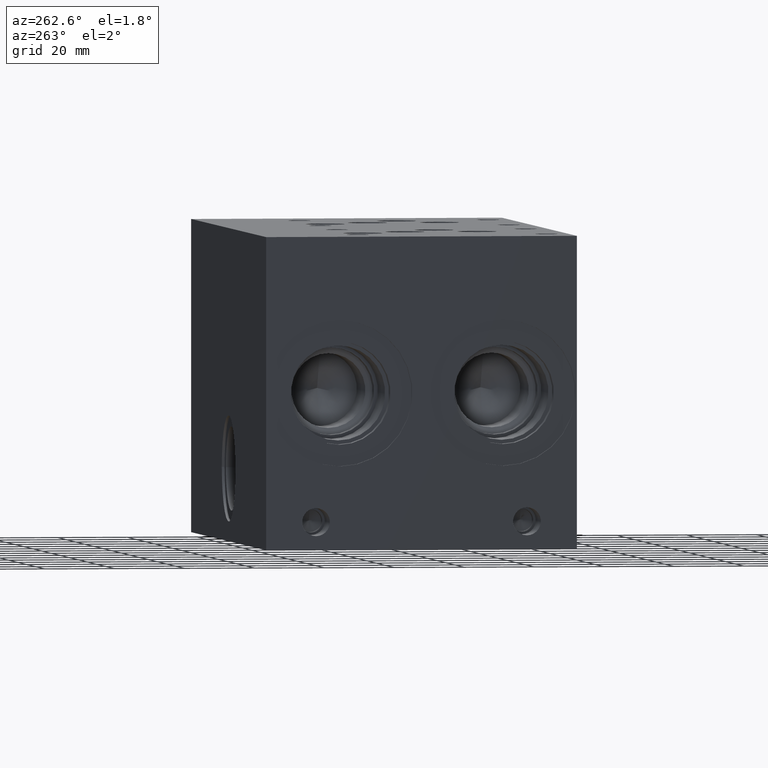
[diagram: clean part render]
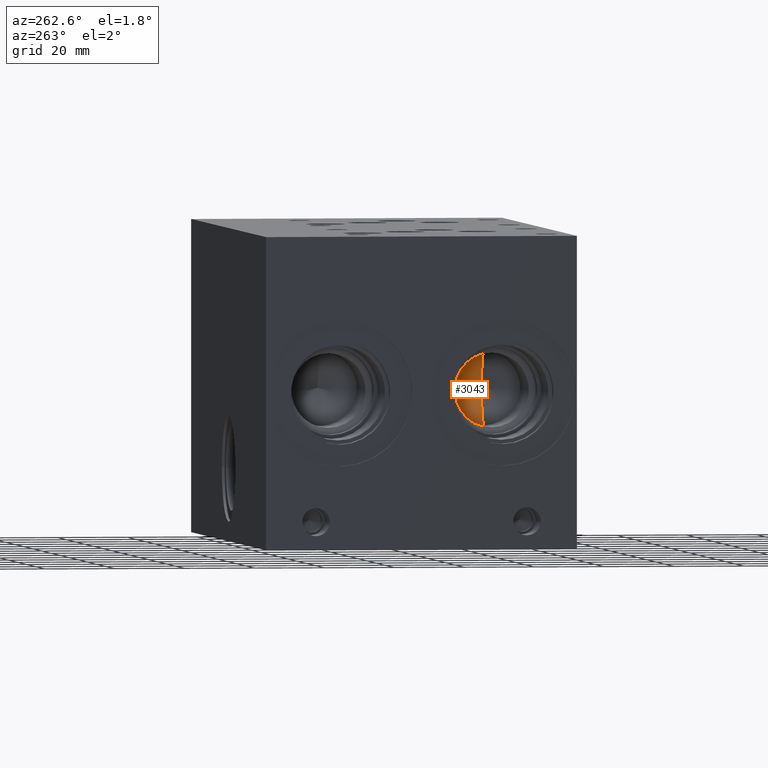
[diagram: same view with one face highlighted and labeled with its STEP entity id]
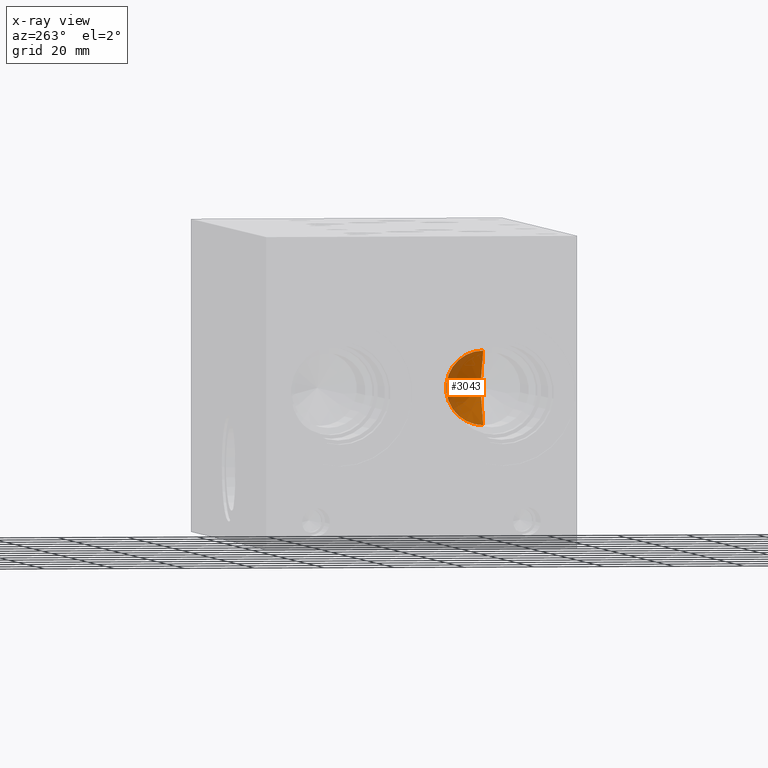
[diagram: x-ray of the same camera — body ghosted, the highlighted face saturated]
A machine part, auxiliary view. The second image highlights one B-rep face of the part: STEP entity #3043.
The next image is the same camera in x-ray: the body ghosted, the highlighted face saturated — about 23% of this face is hidden behind the body in this view.
In plain terms, the highlighted conical surface has half-angle 60 deg.
Its self-contained STEP definition (entity closure, byte-faithful):
#2989=CARTESIAN_POINT('',(43.950375975406253,21.081999999999997,55.041799999999988));
#2990=VERTEX_POINT('',#2989);
#2991=CARTESIAN_POINT('',(43.950375975406253,21.081999999999997,33.858199999999997));
#2992=VERTEX_POINT('',#2991);
#3000=CARTESIAN_POINT('',(43.950375975406253,21.081999999999997,44.449999999999996));
#3001=DIRECTION('',(1.0,0.0,0.0));
#3002=DIRECTION('',(0.0,-1.0,0.0));
#3003=AXIS2_PLACEMENT_3D('',#3000,#3001,#3002);
#3004=CIRCLE('',#3003,10.591799999999997);
#3005=EDGE_CURVE('',#2992,#2990,#3004,.T.);
#3015=CARTESIAN_POINT('',(50.065554556608838,21.081999999999997,44.449999999999996));
#3016=VERTEX_POINT('',#3015);
#3017=CARTESIAN_POINT('',(43.950375975406253,21.081999999999997,33.858199999999997));
#3018=DIRECTION('',(0.499999999999994,0.0,0.866025403784442));
#3019=VECTOR('',#3018,12.230357162405310);
#3020=LINE('',#3017,#3019);
#3021=EDGE_CURVE('',#2992,#3016,#3020,.T.);
#3024=CARTESIAN_POINT('',(50.065554556608838,21.081999999999997,44.449999999999996));
#3025=DIRECTION('',(-0.499999999999994,0.0,0.866025403784442));
#3026=VECTOR('',#3025,12.230357162405305);
#3027=LINE('',#3024,#3026);
#3028=EDGE_CURVE('',#3016,#2990,#3027,.T.);
#3033=CARTESIAN_POINT('',(35.400857719192430,21.081999999999997,44.449999999999996));
#3034=DIRECTION('',(-1.0,0.0,0.0));
#3035=DIRECTION('',(0.0,-1.0,0.0));
#3036=AXIS2_PLACEMENT_3D('',#3033,#3034,#3035);
#3037=CONICAL_SURFACE('',#3036,25.399999999999995,59.999999999999993);
#3038=ORIENTED_EDGE('',*,*,#3021,.T.);
#3039=ORIENTED_EDGE('',*,*,#3028,.T.);
#3040=ORIENTED_EDGE('',*,*,#3005,.F.);
#3041=EDGE_LOOP('',(#3038,#3039,#3040));
#3042=FACE_OUTER_BOUND('',#3041,.T.);
#3043=ADVANCED_FACE('',(#3042),#3037,.F.);